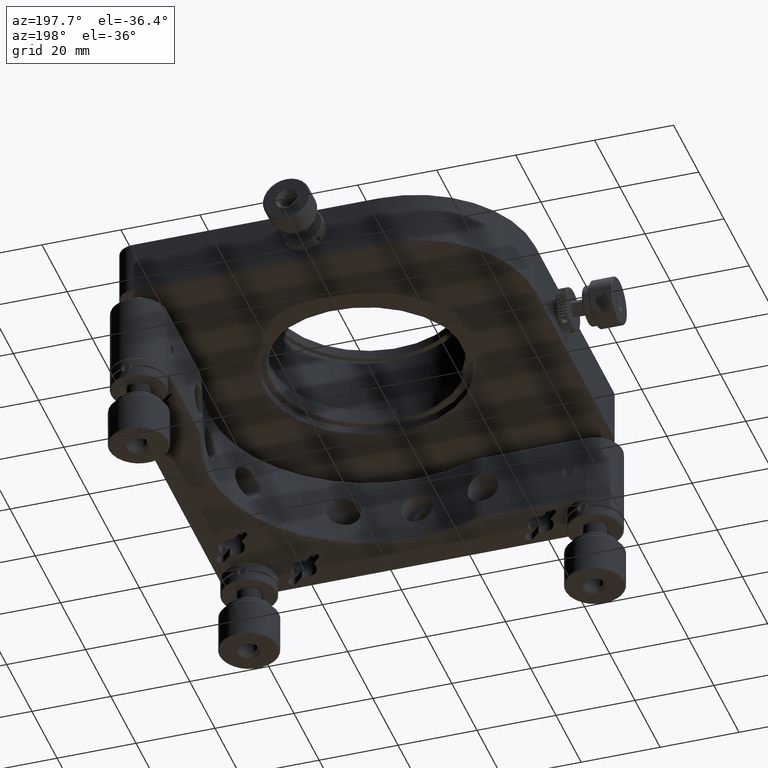
[diagram: clean part render]
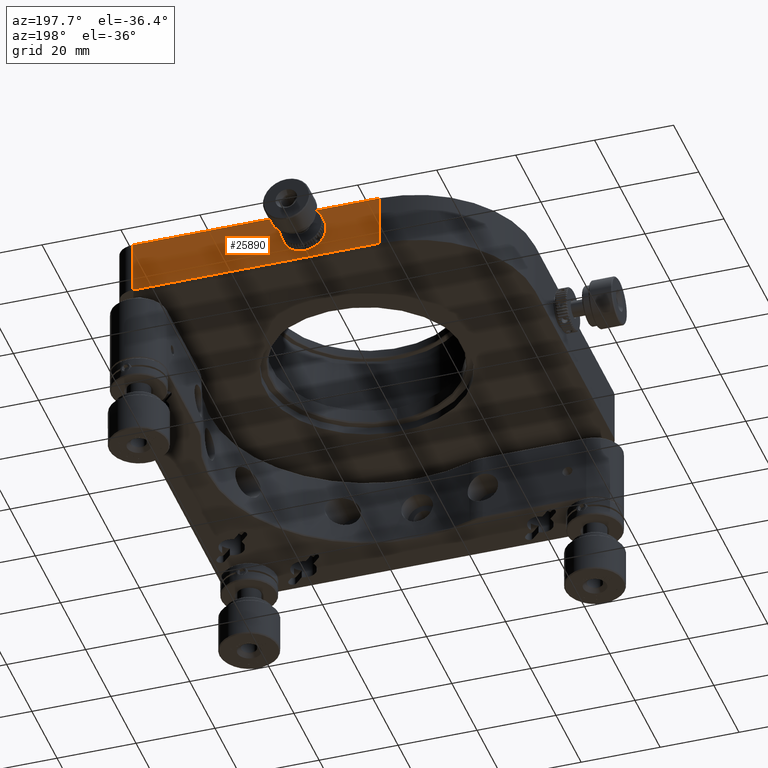
[diagram: same view with one face highlighted and labeled with its STEP entity id]
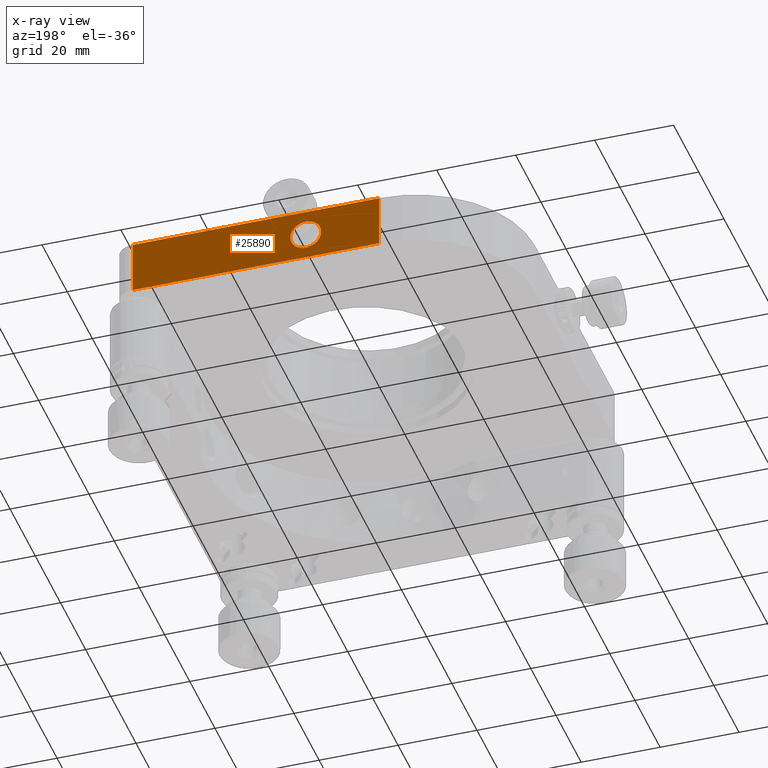
[diagram: x-ray of the same camera — body ghosted, the highlighted face saturated]
A machine part, auxiliary view. The second image highlights one B-rep face of the part: STEP entity #25890.
The next image is the same camera in x-ray: the body ghosted, the highlighted face saturated — about 1% of this face is hidden behind the body in this view.
In plain terms, the highlighted planar face has unit normal (0, -1, 0).
Its self-contained STEP definition (entity closure, byte-faithful):
#3432 = VECTOR ( 'NONE', #42037, 1000.000000000000000 ) ;
#4115 = LINE ( 'NONE', #16921, #3432 ) ;
#7972 = LINE ( 'NONE', #15788, #20080 ) ;
#8240 = DIRECTION ( 'NONE',  ( -1.000000000000000000, -2.770590414266281787E-17, 9.985173666275294357E-34 ) ) ;
#8467 = VERTEX_POINT ( 'NONE', #38568 ) ;
#10755 = ORIENTED_EDGE ( 'NONE', *, *, #12695, .F. ) ;
#11599 = CARTESIAN_POINT ( 'NONE',  ( -100.0500000000000824, 36.09999999990932196, 33.28842537941656587 ) ) ;
#11601 = VERTEX_POINT ( 'NONE', #30852 ) ;
#12353 = EDGE_CURVE ( 'NONE', #42724, #11601, #4115, .T. ) ;
#12695 = EDGE_CURVE ( 'NONE', #42726, #8467, #17762, .T. ) ;
#13349 = FACE_BOUND ( 'NONE', #21504, .T. ) ;
#13565 = ORIENTED_EDGE ( 'NONE', *, *, #29807, .F. ) ;
#13576 = DIRECTION ( 'NONE',  ( -1.663366159635580232E-16, -3.603987660846512529E-17, -1.000000000000000000 ) ) ;
#14665 = AXIS2_PLACEMENT_3D ( 'NONE', #25331, #42379, #55196 ) ;
#15788 = CARTESIAN_POINT ( 'NONE',  ( -148.6000000000000796, 36.09999999999997300, 40.03842537941657298 ) ) ;
#16921 = CARTESIAN_POINT ( 'NONE',  ( -56.25000000000006395, 36.09999999999997300, 26.53842537941658009 ) ) ;
#17401 = EDGE_CURVE ( 'NONE', #42724, #8467, #40817, .T. ) ;
#17762 = LINE ( 'NONE', #35609, #23894 ) ;
#20080 = VECTOR ( 'NONE', #8240, 1000.000000000000000 ) ;
#21504 = EDGE_LOOP ( 'NONE', ( #37037 ) ) ;
#22603 = AXIS2_PLACEMENT_3D ( 'NONE', #11599, #32783, #24405 ) ;
#22961 = DIRECTION ( 'NONE',  ( -1.000000000000000000, -0.000000000000000000, 1.663366159635579985E-16 ) ) ;
#23894 = VECTOR ( 'NONE', #13576, 1000.000000000000000 ) ;
#24405 = DIRECTION ( 'NONE',  ( -1.000000000000000000, 1.779203565136110798E-15, 0.000000000000000000 ) ) ;
#25331 = CARTESIAN_POINT ( 'NONE',  ( -148.6000000000000796, 36.09999999999997300, 26.53842537941658009 ) ) ;
#25890 = ADVANCED_FACE ( 'NONE', ( #47958, #13349 ), #26153, .F. ) ;
#26153 = PLANE ( 'NONE',  #14665 ) ;
#29807 = EDGE_CURVE ( 'NONE', #11601, #42726, #7972, .T. ) ;
#30852 = CARTESIAN_POINT ( 'NONE',  ( -56.25000000000006395, 36.09999999999997300, 40.03842537941657298 ) ) ;
#30948 = VECTOR ( 'NONE', #22961, 1000.000000000000000 ) ;
#32123 = CARTESIAN_POINT ( 'NONE',  ( -100.0500000000000540, 36.09999999999997300, 26.53842537941656943 ) ) ;
#32783 = DIRECTION ( 'NONE',  ( 1.734723475964136608E-15, 1.000000000000000000, -0.000000000000000000 ) ) ;
#34590 = VERTEX_POINT ( 'NONE', #48000 ) ;
#35609 = CARTESIAN_POINT ( 'NONE',  ( -118.6000000000000654, 36.09999999999996589, 26.53842537941657298 ) ) ;
#37037 = ORIENTED_EDGE ( 'NONE', *, *, #40030, .F. ) ;
#38568 = CARTESIAN_POINT ( 'NONE',  ( -118.6000000000000654, 36.09999999999996589, 26.53842537941657298 ) ) ;
#39049 = CARTESIAN_POINT ( 'NONE',  ( -118.6000000000000654, 36.09999999999996589, 40.03842537941657298 ) ) ;
#40030 = EDGE_CURVE ( 'NONE', #34590, #34590, #46664, .T. ) ;
#40817 = LINE ( 'NONE', #32123, #30948 ) ;
#42037 = DIRECTION ( 'NONE',  ( -0.000000000000000000, 3.603987660846508215E-17, 1.000000000000000000 ) ) ;
#42379 = DIRECTION ( 'NONE',  ( 2.770590414266281787E-17, -1.000000000000000000, 3.603987660846508215E-17 ) ) ;
#42724 = VERTEX_POINT ( 'NONE', #51866 ) ;
#42726 = VERTEX_POINT ( 'NONE', #39049 ) ;
#42892 = EDGE_LOOP ( 'NONE', ( #10755, #13565, #53465, #52474 ) ) ;
#46664 = CIRCLE ( 'NONE', #22603, 3.899999999930528372 ) ;
#47958 = FACE_OUTER_BOUND ( 'NONE', #42892, .T. ) ;
#48000 = CARTESIAN_POINT ( 'NONE',  ( -103.9499999999306112, 36.09999999990932906, 33.28842537941656587 ) ) ;
#51866 = CARTESIAN_POINT ( 'NONE',  ( -56.25000000000006395, 36.09999999999997300, 26.53842537941656232 ) ) ;
#52474 = ORIENTED_EDGE ( 'NONE', *, *, #17401, .T. ) ;
#53465 = ORIENTED_EDGE ( 'NONE', *, *, #12353, .F. ) ;
#55196 = DIRECTION ( 'NONE',  ( 0.000000000000000000, -3.603987660846508215E-17, -1.000000000000000000 ) ) ;